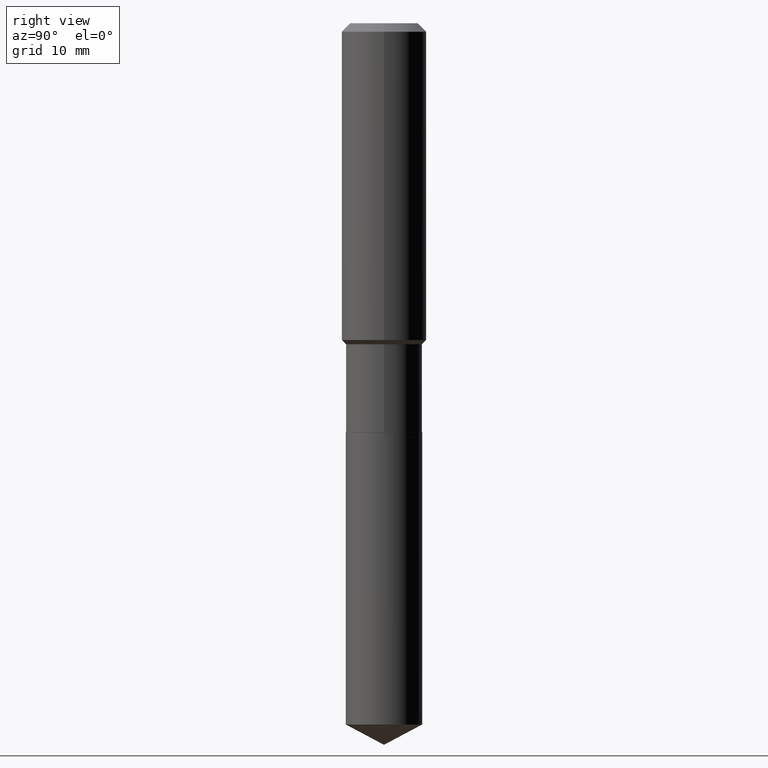
[diagram: clean part render]
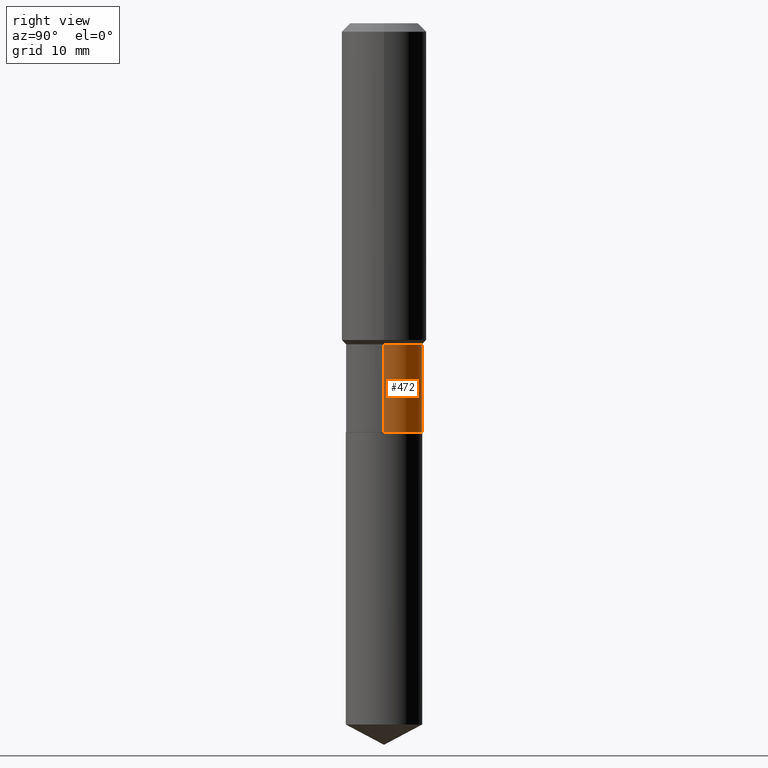
[diagram: same view with one face highlighted and labeled with its STEP entity id]
A machine part, right view. The second image highlights one B-rep face of the part: STEP entity #472.
In plain terms, the highlighted cylindrical surface (partial cylindrical patch) has radius 5.4 mm, axis along (-0, 0, 1).
Its self-contained STEP definition (entity closure, byte-faithful):
#24 = VECTOR ( 'NONE', #298, 39.37007874015748143 ) ;
#27 = CYLINDRICAL_SURFACE ( 'NONE', #261, 0.2125999999999999834 ) ;
#32 = DIRECTION ( 'NONE',  ( -2.445468806185136597E-29, 3.491481338843145583E-15, 1.000000000000000000 ) ) ;
#38 = EDGE_LOOP ( 'NONE', ( #83, #71, #346, #288 ) ) ;
#54 = AXIS2_PLACEMENT_3D ( 'NONE', #237, #32, #198 ) ;
#71 = ORIENTED_EDGE ( 'NONE', *, *, #424, .T. ) ;
#83 = ORIENTED_EDGE ( 'NONE', *, *, #403, .T. ) ;
#89 = CIRCLE ( 'NONE', #159, 0.2126000000000000112 ) ;
#96 = VERTEX_POINT ( 'NONE', #489 ) ;
#102 = CARTESIAN_POINT ( 'NONE',  ( 0.2126000000000000112, -9.427697911144257060E-15, -2.275000000000000355 ) ) ;
#104 = EDGE_CURVE ( 'NONE', #462, #96, #319, .T. ) ;
#109 = DIRECTION ( 'NONE',  ( 1.000000000000000000, -6.982962677686265133E-15, 0.000000000000000000 ) ) ;
#138 = EDGE_CURVE ( 'NONE', #96, #475, #277, .T. ) ;
#142 = DIRECTION ( 'NONE',  ( 1.000000000000000000, -6.982962677686267499E-15, 4.876176775795935232E-29 ) ) ;
#151 = CARTESIAN_POINT ( 'NONE',  ( 0.000000000000000000, 0.000000000000000000, 0.000000000000000000 ) ) ;
#155 = LINE ( 'NONE', #193, #24 ) ;
#156 = CARTESIAN_POINT ( 'NONE',  ( 5.563441534071186206E-29, -7.943120045868156782E-15, -2.275000000000000355 ) ) ;
#159 = AXIS2_PLACEMENT_3D ( 'NONE', #156, #178, #109 ) ;
#178 = DIRECTION ( 'NONE',  ( -2.445468806185136597E-29, 3.491481338843145583E-15, 1.000000000000000000 ) ) ;
#192 = VECTOR ( 'NONE', #271, 39.37007874015748143 ) ;
#193 = CARTESIAN_POINT ( 'NONE',  ( -0.2125999999999999834, 1.510613856225972877E-15, -1.045765600188192871E-29 ) ) ;
#198 = DIRECTION ( 'NONE',  ( 1.000000000000000000, -6.982962677686268288E-15, 0.000000000000000000 ) ) ;
#237 = CARTESIAN_POINT ( 'NONE',  ( 4.368830022249746176E-29, -6.237531411843279954E-15, -1.786499999999999977 ) ) ;
#244 = CARTESIAN_POINT ( 'NONE',  ( -0.2125999999999999279, -5.579711872629745688E-15, -1.786499999999999977 ) ) ;
#261 = AXIS2_PLACEMENT_3D ( 'NONE', #151, #410, #142 ) ;
#271 = DIRECTION ( 'NONE',  ( -2.445468806185136877E-29, 3.491481338843145188E-15, 1.000000000000000000 ) ) ;
#277 = CIRCLE ( 'NONE', #54, 0.2125999999999999279 ) ;
#288 = ORIENTED_EDGE ( 'NONE', *, *, #104, .F. ) ;
#298 = DIRECTION ( 'NONE',  ( -2.445468806185136877E-29, 3.491481338843145188E-15, 1.000000000000000000 ) ) ;
#319 = LINE ( 'NONE', #463, #192 ) ;
#346 = ORIENTED_EDGE ( 'NONE', *, *, #138, .F. ) ;
#349 = VERTEX_POINT ( 'NONE', #373 ) ;
#373 = CARTESIAN_POINT ( 'NONE',  ( -0.2126000000000000112, -5.579711872629745688E-15, -2.275000000000000355 ) ) ;
#376 = FACE_OUTER_BOUND ( 'NONE', #38, .T. ) ;
#403 = EDGE_CURVE ( 'NONE', #462, #349, #89, .T. ) ;
#410 = DIRECTION ( 'NONE',  ( -2.445468806185136597E-29, 3.491481338843145583E-15, 1.000000000000000000 ) ) ;
#424 = EDGE_CURVE ( 'NONE', #349, #475, #155, .T. ) ;
#462 = VERTEX_POINT ( 'NONE', #102 ) ;
#463 = CARTESIAN_POINT ( 'NONE',  ( 0.2125999999999999834, -1.484577865276100277E-15, 1.036675182534215730E-29 ) ) ;
#472 = ADVANCED_FACE ( 'NONE', ( #376 ), #27, .T. ) ;
#475 = VERTEX_POINT ( 'NONE', #244 ) ;
#489 = CARTESIAN_POINT ( 'NONE',  ( 0.2125999999999999279, -7.722109277119379442E-15, -1.786499999999999977 ) ) ;